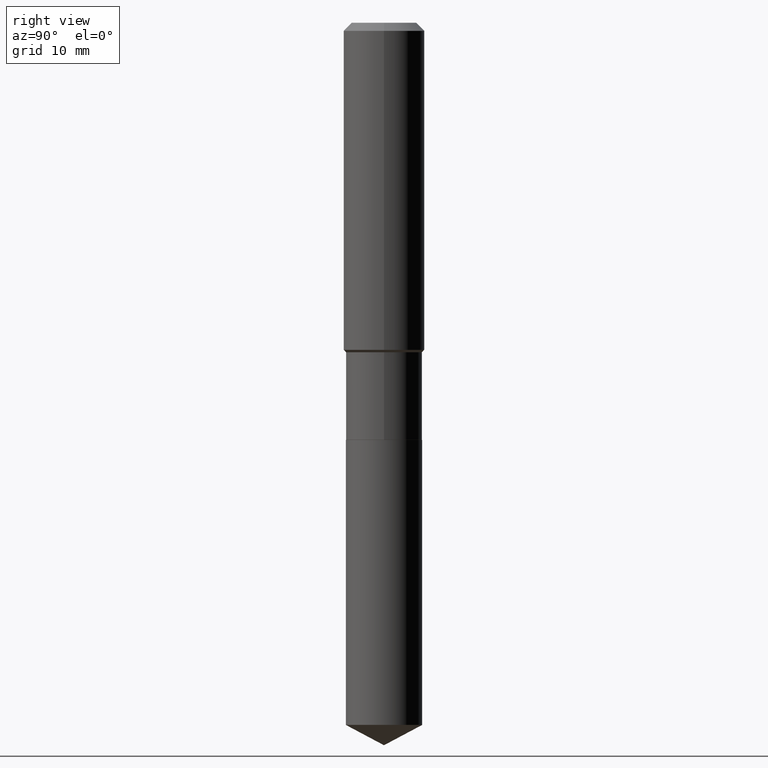
[diagram: clean part render]
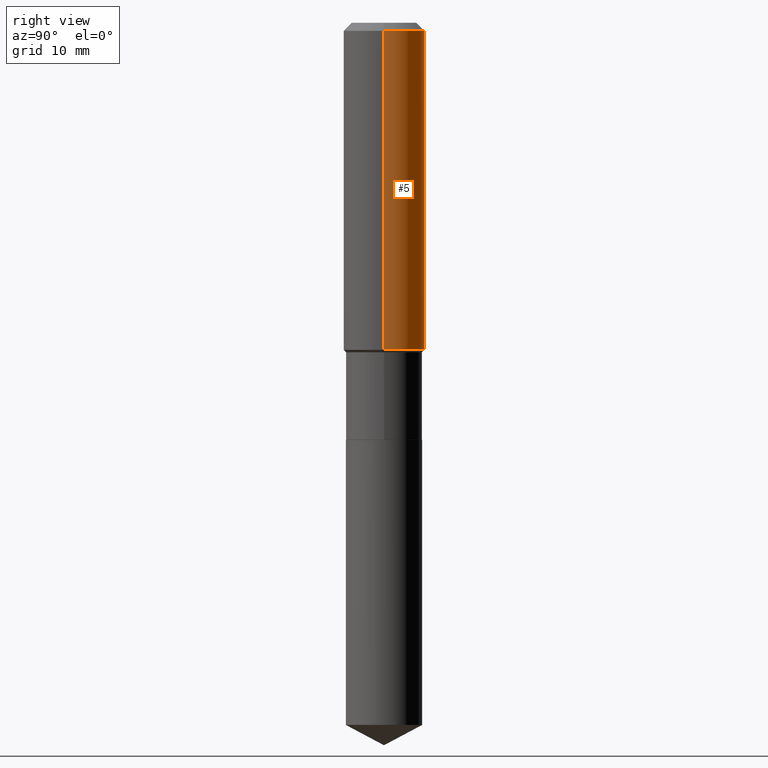
[diagram: same view with one face highlighted and labeled with its STEP entity id]
A machine part, right view. The second image highlights one B-rep face of the part: STEP entity #5.
In plain terms, the highlighted cylindrical surface (partial cylindrical patch) has radius 5 mm, axis along (-0, 0, 1).
Its self-contained STEP definition (entity closure, byte-faithful):
#2 = EDGE_CURVE ( 'NONE', #419, #167, #350, .T. ) ;
#5 = ADVANCED_FACE ( 'NONE', ( #395 ), #162, .T. ) ;
#25 = ORIENTED_EDGE ( 'NONE', *, *, #2, .F. ) ;
#26 = CARTESIAN_POINT ( 'NONE',  ( -0.1968500000000002192, -4.139484324329237071E-15, -1.586199999999999610 ) ) ;
#58 = DIRECTION ( 'NONE',  ( -2.445468806185136597E-29, 3.491481338843145583E-15, 1.000000000000000000 ) ) ;
#86 = VECTOR ( 'NONE', #94, 39.37007874015748143 ) ;
#94 = DIRECTION ( 'NONE',  ( -2.445468806185136877E-29, 3.491481338843145188E-15, 1.000000000000000000 ) ) ;
#112 = VECTOR ( 'NONE', #268, 39.37007874015748143 ) ;
#126 = VERTEX_POINT ( 'NONE', #26 ) ;
#139 = CIRCLE ( 'NONE', #406, 0.1968500000000002192 ) ;
#162 = CYLINDRICAL_SURFACE ( 'NONE', #404, 0.1968500000000001082 ) ;
#167 = VERTEX_POINT ( 'NONE', #266 ) ;
#174 = CARTESIAN_POINT ( 'NONE',  ( 0.1968500000000002192, -6.912783902775538833E-15, -1.586199999999999610 ) ) ;
#201 = CARTESIAN_POINT ( 'NONE',  ( 0.000000000000000000, 0.000000000000000000, 0.000000000000000000 ) ) ;
#210 = CARTESIAN_POINT ( 'NONE',  ( 3.879002620370862839E-29, -5.538187699672996436E-15, -1.586199999999999610 ) ) ;
#226 = CIRCLE ( 'NONE', #243, 0.1968500000000000250 ) ;
#239 = ORIENTED_EDGE ( 'NONE', *, *, #424, .T. ) ;
#240 = DIRECTION ( 'NONE',  ( 1.000000000000000000, -6.982962677686265922E-15, 0.000000000000000000 ) ) ;
#241 = EDGE_LOOP ( 'NONE', ( #239, #362, #303, #25 ) ) ;
#243 = AXIS2_PLACEMENT_3D ( 'NONE', #352, #276, #357 ) ;
#266 = CARTESIAN_POINT ( 'NONE',  ( 0.1968500000000000250, -1.512055823412797189E-15, -0.03937000000000029365 ) ) ;
#268 = DIRECTION ( 'NONE',  ( -2.445468806185136877E-29, 3.491481338843145188E-15, 1.000000000000000000 ) ) ;
#274 = CARTESIAN_POINT ( 'NONE',  ( 0.1968500000000001082, -1.374596203102542397E-15, 9.598753983154305062E-30 ) ) ;
#276 = DIRECTION ( 'NONE',  ( -2.445468806185136597E-29, 3.491481338843145583E-15, 1.000000000000000000 ) ) ;
#277 = CARTESIAN_POINT ( 'NONE',  ( -0.1968500000000001082, 1.398703375343757985E-15, -9.682923725166787881E-30 ) ) ;
#293 = EDGE_CURVE ( 'NONE', #126, #480, #428, .T. ) ;
#303 = ORIENTED_EDGE ( 'NONE', *, *, #375, .F. ) ;
#307 = DIRECTION ( 'NONE',  ( 1.000000000000000000, -6.982962677686266711E-15, 4.876176775795935793E-29 ) ) ;
#350 = LINE ( 'NONE', #274, #86 ) ;
#352 = CARTESIAN_POINT ( 'NONE',  ( 9.627810689950954155E-31, -1.374596203102556547E-16, -0.03937000000000029365 ) ) ;
#357 = DIRECTION ( 'NONE',  ( 1.000000000000000000, -6.982962677686265922E-15, 0.000000000000000000 ) ) ;
#362 = ORIENTED_EDGE ( 'NONE', *, *, #293, .T. ) ;
#375 = EDGE_CURVE ( 'NONE', #167, #480, #226, .T. ) ;
#395 = FACE_OUTER_BOUND ( 'NONE', #241, .T. ) ;
#404 = AXIS2_PLACEMENT_3D ( 'NONE', #201, #58, #307 ) ;
#406 = AXIS2_PLACEMENT_3D ( 'NONE', #210, #478, #240 ) ;
#407 = CARTESIAN_POINT ( 'NONE',  ( -0.1968500000000000250, -1.439120284647867629E-15, -0.03937000000000029365 ) ) ;
#419 = VERTEX_POINT ( 'NONE', #174 ) ;
#424 = EDGE_CURVE ( 'NONE', #419, #126, #139, .T. ) ;
#428 = LINE ( 'NONE', #277, #112 ) ;
#478 = DIRECTION ( 'NONE',  ( -2.445468806185136597E-29, 3.491481338843145583E-15, 1.000000000000000000 ) ) ;
#480 = VERTEX_POINT ( 'NONE', #407 ) ;